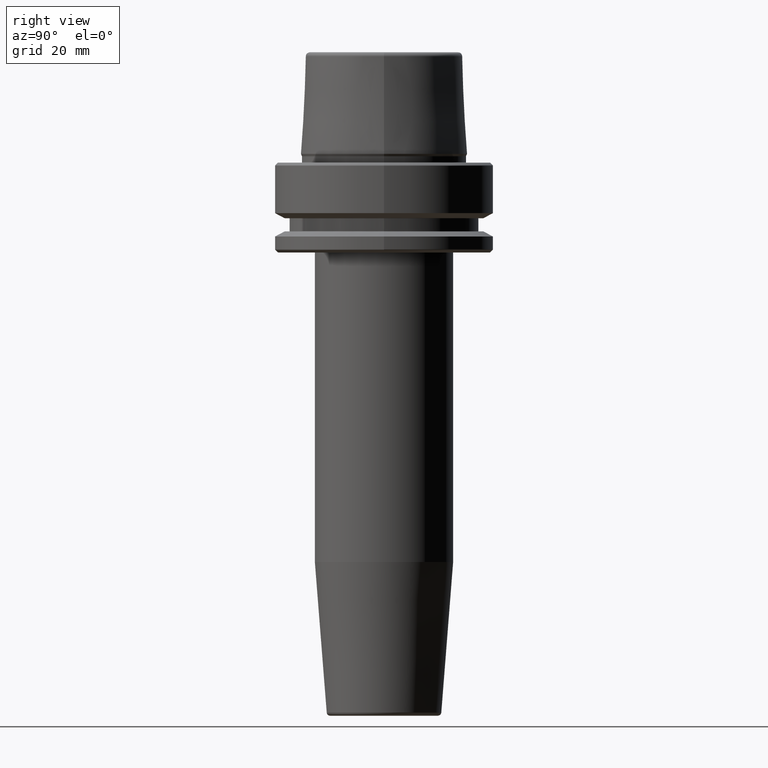
[diagram: clean part render]
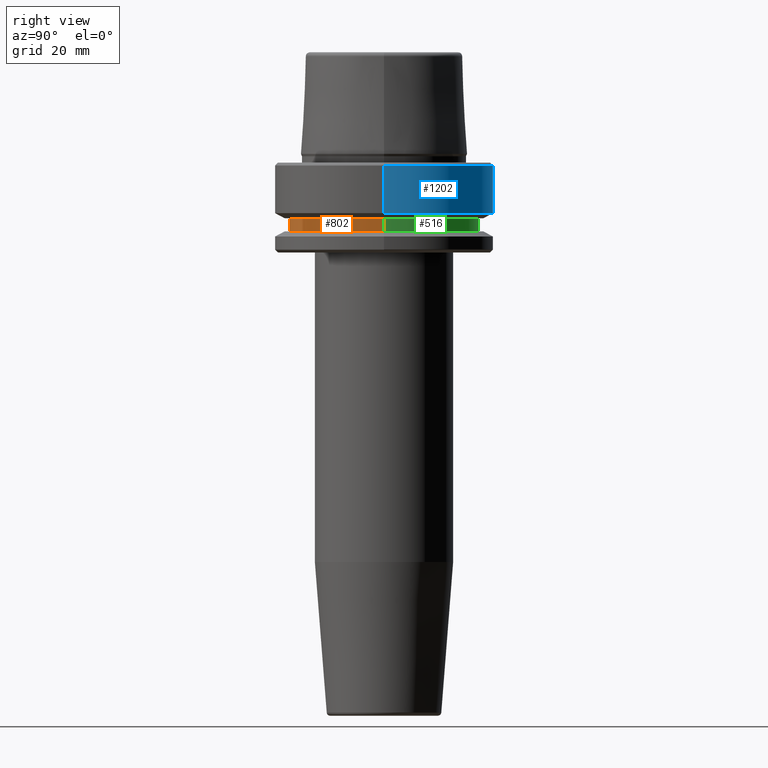
[diagram: same view with three faces highlighted in distinct colors, each labeled with its STEP entity id]
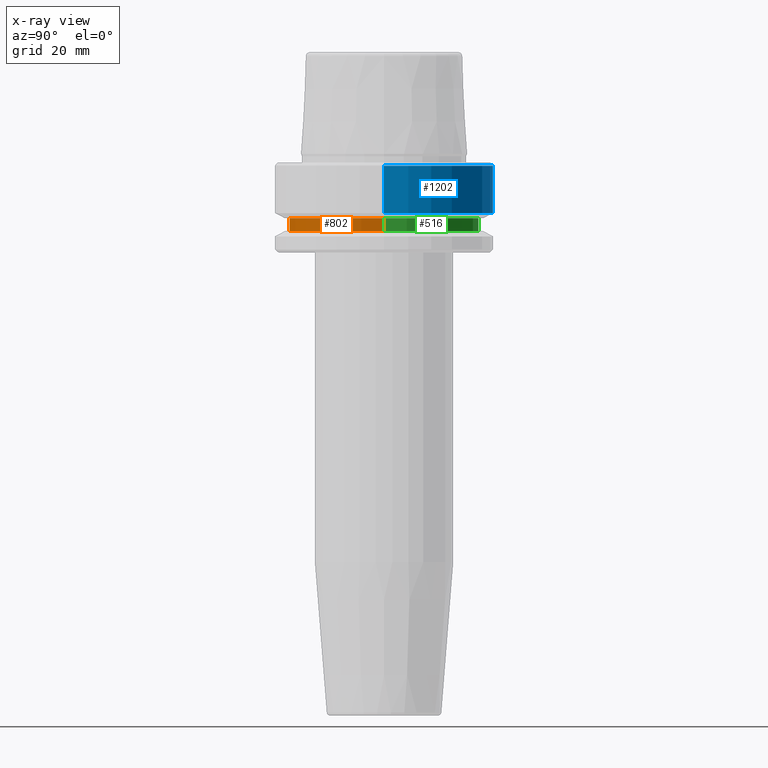
[diagram: x-ray of the same camera — body ghosted, the three highlighted faces saturated]
A machine part, right view with three faces highlighted in distinct colors.
The next image is the same camera in x-ray (body ghosted, the three faces saturated) — at least one of them is partly hidden behind the body in this view.
Their STEP definitions:

[orange] entity #802 — the highlighted cylindrical surface (partial cylindrical patch) has radius 27.5 mm, axis along (-0, -0, 1).
#79 = VECTOR ( 'NONE', #118, 1000.000000000000000 ) ;
#82 = CARTESIAN_POINT ( 'NONE',  ( 0.0000000000000000000, 0.0000000000000000000, -16.10000000000001600 ) ) ;
#95 = EDGE_CURVE ( 'NONE', #116, #607, #520, .T. ) ;
#116 = VERTEX_POINT ( 'NONE', #658 ) ;
#118 = DIRECTION ( 'NONE',  ( -0.0000000000000000000, -0.0000000000000000000, 1.000000000000000000 ) ) ;
#120 = DIRECTION ( 'NONE',  ( -0.0000000000000000000, -0.0000000000000000000, 1.000000000000000000 ) ) ;
#145 = CARTESIAN_POINT ( 'NONE',  ( 27.49999999999999600, 0.0000000000000000000, -19.90000000000001600 ) ) ;
#174 = CIRCLE ( 'NONE', #491, 27.49999999999999600 ) ;
#203 = ORIENTED_EDGE ( 'NONE', *, *, #599, .F. ) ;
#215 = CARTESIAN_POINT ( 'NONE',  ( 27.49999999999999600, 0.0000000000000000000, 78.96908074195309300 ) ) ;
#241 = CARTESIAN_POINT ( 'NONE',  ( 0.0000000000000000000, 0.0000000000000000000, -19.90000000000001600 ) ) ;
#264 = LINE ( 'NONE', #566, #79 ) ;
#303 = VERTEX_POINT ( 'NONE', #401 ) ;
#304 = DIRECTION ( 'NONE',  ( 1.000000000000000000, 0.0000000000000000000, 0.0000000000000000000 ) ) ;
#310 = CYLINDRICAL_SURFACE ( 'NONE', #611, 27.49999999999999600 ) ;
#354 = EDGE_CURVE ( 'NONE', #303, #1208, #174, .T. ) ;
#374 = DIRECTION ( 'NONE',  ( -0.0000000000000000000, -0.0000000000000000000, 1.000000000000000000 ) ) ;
#401 = CARTESIAN_POINT ( 'NONE',  ( -27.49999999999999600, 3.367778697655220900E-015, -16.10000000000001600 ) ) ;
#403 = CARTESIAN_POINT ( 'NONE',  ( 0.0000000000000000000, 0.0000000000000000000, 78.96908074195309300 ) ) ;
#491 = AXIS2_PLACEMENT_3D ( 'NONE', #82, #1230, #949 ) ;
#502 = AXIS2_PLACEMENT_3D ( 'NONE', #241, #374, #1013 ) ;
#520 = CIRCLE ( 'NONE', #502, 27.49999999999999600 ) ;
#543 = LINE ( 'NONE', #215, #801 ) ;
#566 = CARTESIAN_POINT ( 'NONE',  ( -27.49999999999999600, 3.367778697655220900E-015, 78.96908074195309300 ) ) ;
#585 = CARTESIAN_POINT ( 'NONE',  ( 27.49999999999999600, 0.0000000000000000000, -16.10000000000001600 ) ) ;
#599 = EDGE_CURVE ( 'NONE', #116, #303, #264, .T. ) ;
#607 = VERTEX_POINT ( 'NONE', #145 ) ;
#611 = AXIS2_PLACEMENT_3D ( 'NONE', #403, #120, #304 ) ;
#658 = CARTESIAN_POINT ( 'NONE',  ( -27.49999999999999600, 3.367778697655220900E-015, -19.90000000000001600 ) ) ;
#715 = ORIENTED_EDGE ( 'NONE', *, *, #354, .F. ) ;
#801 = VECTOR ( 'NONE', #908, 1000.000000000000000 ) ;
#802 = ADVANCED_FACE ( 'NONE', ( #1093 ), #310, .T. ) ;
#832 = EDGE_CURVE ( 'NONE', #607, #1208, #543, .T. ) ;
#833 = EDGE_LOOP ( 'NONE', ( #203, #1198, #1060, #715 ) ) ;
#908 = DIRECTION ( 'NONE',  ( -0.0000000000000000000, -0.0000000000000000000, 1.000000000000000000 ) ) ;
#949 = DIRECTION ( 'NONE',  ( 1.000000000000000000, 0.0000000000000000000, 0.0000000000000000000 ) ) ;
#1013 = DIRECTION ( 'NONE',  ( 1.000000000000000000, 0.0000000000000000000, 0.0000000000000000000 ) ) ;
#1060 = ORIENTED_EDGE ( 'NONE', *, *, #832, .T. ) ;
#1093 = FACE_OUTER_BOUND ( 'NONE', #833, .T. ) ;
#1198 = ORIENTED_EDGE ( 'NONE', *, *, #95, .T. ) ;
#1208 = VERTEX_POINT ( 'NONE', #585 ) ;
#1230 = DIRECTION ( 'NONE',  ( -0.0000000000000000000, -0.0000000000000000000, 1.000000000000000000 ) ) ;

[blue] entity #1202 — the highlighted cylindrical surface (partial cylindrical patch) has radius 31.5 mm, axis along (-0, -0, 1).
#38 = FACE_OUTER_BOUND ( 'NONE', #278, .T. ) ;
#43 = CIRCLE ( 'NONE', #444, 31.50000000000000000 ) ;
#75 = EDGE_CURVE ( 'NONE', #644, #1172, #43, .T. ) ;
#83 = CARTESIAN_POINT ( 'NONE',  ( -31.50000000000000000, 3.857637417314162700E-015, -14.62250092524070100 ) ) ;
#103 = DIRECTION ( 'NONE',  ( -0.0000000000000000000, -0.0000000000000000000, 1.000000000000000000 ) ) ;
#107 = LINE ( 'NONE', #1238, #1128 ) ;
#169 = ORIENTED_EDGE ( 'NONE', *, *, #879, .F. ) ;
#189 = DIRECTION ( 'NONE',  ( -0.0000000000000000000, -0.0000000000000000000, 1.000000000000000000 ) ) ;
#226 = DIRECTION ( 'NONE',  ( 1.000000000000000000, 0.0000000000000000000, 0.0000000000000000000 ) ) ;
#227 = CIRCLE ( 'NONE', #333, 31.50000000000000700 ) ;
#233 = ORIENTED_EDGE ( 'NONE', *, *, #455, .T. ) ;
#250 = VERTEX_POINT ( 'NONE', #454 ) ;
#278 = EDGE_LOOP ( 'NONE', ( #889, #233, #767, #169 ) ) ;
#333 = AXIS2_PLACEMENT_3D ( 'NONE', #775, #189, #876 ) ;
#349 = CARTESIAN_POINT ( 'NONE',  ( -31.50000000000000700, 3.857637417314163500E-015, -0.9656854249492363700 ) ) ;
#398 = AXIS2_PLACEMENT_3D ( 'NONE', #865, #676, #580 ) ;
#424 = CARTESIAN_POINT ( 'NONE',  ( 31.50000000000000000, 0.0000000000000000000, -14.62250092524070100 ) ) ;
#444 = AXIS2_PLACEMENT_3D ( 'NONE', #596, #103, #226 ) ;
#454 = CARTESIAN_POINT ( 'NONE',  ( 31.50000000000000700, 0.0000000000000000000, -0.9656854249492363700 ) ) ;
#455 = EDGE_CURVE ( 'NONE', #1172, #1032, #107, .T. ) ;
#506 = LINE ( 'NONE', #1097, #740 ) ;
#580 = DIRECTION ( 'NONE',  ( 1.000000000000000000, 0.0000000000000000000, 0.0000000000000000000 ) ) ;
#596 = CARTESIAN_POINT ( 'NONE',  ( 0.0000000000000000000, 0.0000000000000000000, -14.62250092524070100 ) ) ;
#644 = VERTEX_POINT ( 'NONE', #424 ) ;
#676 = DIRECTION ( 'NONE',  ( -0.0000000000000000000, -0.0000000000000000000, 1.000000000000000000 ) ) ;
#740 = VECTOR ( 'NONE', #808, 1000.000000000000000 ) ;
#767 = ORIENTED_EDGE ( 'NONE', *, *, #1243, .F. ) ;
#775 = CARTESIAN_POINT ( 'NONE',  ( 0.0000000000000000000, 0.0000000000000000000, -0.9656854249492363700 ) ) ;
#808 = DIRECTION ( 'NONE',  ( -0.0000000000000000000, -0.0000000000000000000, 1.000000000000000000 ) ) ;
#865 = CARTESIAN_POINT ( 'NONE',  ( 0.0000000000000000000, 0.0000000000000000000, 78.96908074195309300 ) ) ;
#876 = DIRECTION ( 'NONE',  ( 1.000000000000000000, 0.0000000000000000000, 0.0000000000000000000 ) ) ;
#879 = EDGE_CURVE ( 'NONE', #644, #250, #506, .T. ) ;
#889 = ORIENTED_EDGE ( 'NONE', *, *, #75, .T. ) ;
#901 = DIRECTION ( 'NONE',  ( -0.0000000000000000000, -0.0000000000000000000, 1.000000000000000000 ) ) ;
#1014 = CYLINDRICAL_SURFACE ( 'NONE', #398, 31.50000000000000000 ) ;
#1032 = VERTEX_POINT ( 'NONE', #349 ) ;
#1097 = CARTESIAN_POINT ( 'NONE',  ( 31.50000000000000000, 0.0000000000000000000, 78.96908074195309300 ) ) ;
#1128 = VECTOR ( 'NONE', #901, 1000.000000000000000 ) ;
#1172 = VERTEX_POINT ( 'NONE', #83 ) ;
#1202 = ADVANCED_FACE ( 'NONE', ( #38 ), #1014, .T. ) ;
#1238 = CARTESIAN_POINT ( 'NONE',  ( -31.50000000000000000, 3.857637417314162700E-015, 78.96908074195309300 ) ) ;
#1243 = EDGE_CURVE ( 'NONE', #250, #1032, #227, .T. ) ;

[green] entity #516 — the highlighted cylindrical surface (partial cylindrical patch) has radius 27.5 mm, axis along (-0, -0, 1).
#79 = VECTOR ( 'NONE', #118, 1000.000000000000000 ) ;
#116 = VERTEX_POINT ( 'NONE', #658 ) ;
#118 = DIRECTION ( 'NONE',  ( -0.0000000000000000000, -0.0000000000000000000, 1.000000000000000000 ) ) ;
#145 = CARTESIAN_POINT ( 'NONE',  ( 27.49999999999999600, 0.0000000000000000000, -19.90000000000001600 ) ) ;
#173 = DIRECTION ( 'NONE',  ( -0.0000000000000000000, -0.0000000000000000000, 1.000000000000000000 ) ) ;
#183 = AXIS2_PLACEMENT_3D ( 'NONE', #546, #1217, #656 ) ;
#196 = ORIENTED_EDGE ( 'NONE', *, *, #599, .T. ) ;
#215 = CARTESIAN_POINT ( 'NONE',  ( 27.49999999999999600, 0.0000000000000000000, 78.96908074195309300 ) ) ;
#264 = LINE ( 'NONE', #566, #79 ) ;
#279 = ORIENTED_EDGE ( 'NONE', *, *, #1037, .F. ) ;
#297 = CARTESIAN_POINT ( 'NONE',  ( 0.0000000000000000000, 0.0000000000000000000, 78.96908074195309300 ) ) ;
#303 = VERTEX_POINT ( 'NONE', #401 ) ;
#357 = DIRECTION ( 'NONE',  ( 1.000000000000000000, 0.0000000000000000000, 0.0000000000000000000 ) ) ;
#401 = CARTESIAN_POINT ( 'NONE',  ( -27.49999999999999600, 3.367778697655220900E-015, -16.10000000000001600 ) ) ;
#471 = AXIS2_PLACEMENT_3D ( 'NONE', #297, #963, #357 ) ;
#493 = ORIENTED_EDGE ( 'NONE', *, *, #832, .F. ) ;
#516 = ADVANCED_FACE ( 'NONE', ( #1115 ), #917, .T. ) ;
#543 = LINE ( 'NONE', #215, #801 ) ;
#546 = CARTESIAN_POINT ( 'NONE',  ( 0.0000000000000000000, 0.0000000000000000000, -16.10000000000001600 ) ) ;
#566 = CARTESIAN_POINT ( 'NONE',  ( -27.49999999999999600, 3.367778697655220900E-015, 78.96908074195309300 ) ) ;
#585 = CARTESIAN_POINT ( 'NONE',  ( 27.49999999999999600, 0.0000000000000000000, -16.10000000000001600 ) ) ;
#588 = CIRCLE ( 'NONE', #1079, 27.49999999999999600 ) ;
#599 = EDGE_CURVE ( 'NONE', #116, #303, #264, .T. ) ;
#607 = VERTEX_POINT ( 'NONE', #145 ) ;
#656 = DIRECTION ( 'NONE',  ( 1.000000000000000000, 0.0000000000000000000, 0.0000000000000000000 ) ) ;
#658 = CARTESIAN_POINT ( 'NONE',  ( -27.49999999999999600, 3.367778697655220900E-015, -19.90000000000001600 ) ) ;
#760 = CARTESIAN_POINT ( 'NONE',  ( 0.0000000000000000000, 0.0000000000000000000, -19.90000000000001600 ) ) ;
#801 = VECTOR ( 'NONE', #908, 1000.000000000000000 ) ;
#818 = EDGE_LOOP ( 'NONE', ( #1051, #196, #279, #493 ) ) ;
#832 = EDGE_CURVE ( 'NONE', #607, #1208, #543, .T. ) ;
#852 = CIRCLE ( 'NONE', #183, 27.49999999999999600 ) ;
#861 = DIRECTION ( 'NONE',  ( 1.000000000000000000, 0.0000000000000000000, 0.0000000000000000000 ) ) ;
#908 = DIRECTION ( 'NONE',  ( -0.0000000000000000000, -0.0000000000000000000, 1.000000000000000000 ) ) ;
#917 = CYLINDRICAL_SURFACE ( 'NONE', #471, 27.49999999999999600 ) ;
#963 = DIRECTION ( 'NONE',  ( -0.0000000000000000000, -0.0000000000000000000, 1.000000000000000000 ) ) ;
#1037 = EDGE_CURVE ( 'NONE', #1208, #303, #852, .T. ) ;
#1051 = ORIENTED_EDGE ( 'NONE', *, *, #1159, .T. ) ;
#1079 = AXIS2_PLACEMENT_3D ( 'NONE', #760, #173, #861 ) ;
#1115 = FACE_OUTER_BOUND ( 'NONE', #818, .T. ) ;
#1159 = EDGE_CURVE ( 'NONE', #607, #116, #588, .T. ) ;
#1208 = VERTEX_POINT ( 'NONE', #585 ) ;
#1217 = DIRECTION ( 'NONE',  ( -0.0000000000000000000, -0.0000000000000000000, 1.000000000000000000 ) ) ;